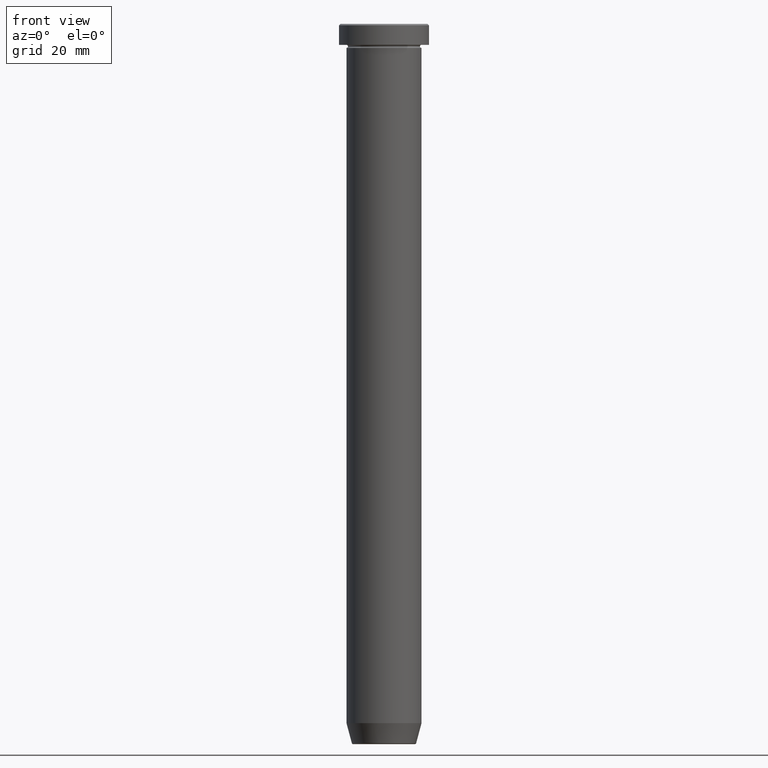
[diagram: clean part render]
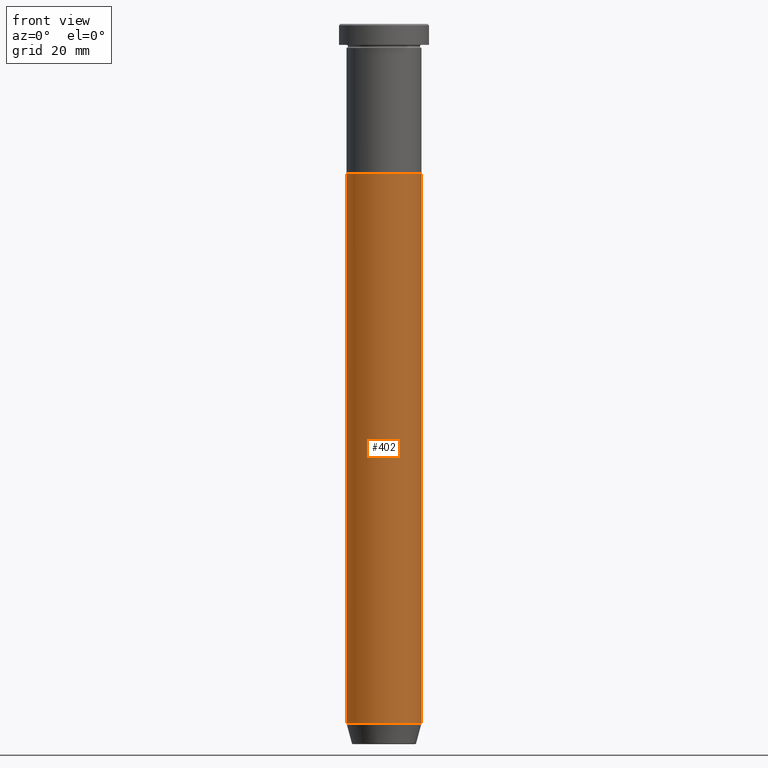
[diagram: same view with one face highlighted and labeled with its STEP entity id]
A machine part, front view. The second image highlights one B-rep face of the part: STEP entity #402.
In plain terms, the highlighted cylindrical surface (partial cylindrical patch) has radius 12.5 mm, axis along (-0, -0, 1).
Its self-contained STEP definition (entity closure, byte-faithful):
#40 = CARTESIAN_POINT ( 'NONE',  ( 12.50000000000000000, 0.000000000000000000, -50.00000000000000000 ) ) ;
#44 = CARTESIAN_POINT ( 'NONE',  ( 12.50000000000000000, 0.000000000000000000, -232.9999999999999716 ) ) ;
#93 = ORIENTED_EDGE ( 'NONE', *, *, #135, .F. ) ;
#105 = DIRECTION ( 'NONE',  ( -0.000000000000000000, -0.000000000000000000, 1.000000000000000000 ) ) ;
#108 = AXIS2_PLACEMENT_3D ( 'NONE', #541, #482, #305 ) ;
#135 = EDGE_CURVE ( 'NONE', #192, #189, #337, .T. ) ;
#164 = FACE_OUTER_BOUND ( 'NONE', #487, .T. ) ;
#167 = DIRECTION ( 'NONE',  ( -0.000000000000000000, -0.000000000000000000, 1.000000000000000000 ) ) ;
#181 = VERTEX_POINT ( 'NONE', #40 ) ;
#189 = VERTEX_POINT ( 'NONE', #399 ) ;
#192 = VERTEX_POINT ( 'NONE', #349 ) ;
#202 = DIRECTION ( 'NONE',  ( -0.000000000000000000, -0.000000000000000000, 1.000000000000000000 ) ) ;
#231 = ORIENTED_EDGE ( 'NONE', *, *, #380, .T. ) ;
#235 = AXIS2_PLACEMENT_3D ( 'NONE', #509, #105, #243 ) ;
#243 = DIRECTION ( 'NONE',  ( 1.000000000000000000, 0.000000000000000000, 0.000000000000000000 ) ) ;
#244 = VECTOR ( 'NONE', #502, 1000.000000000000000 ) ;
#272 = ORIENTED_EDGE ( 'NONE', *, *, #316, .T. ) ;
#305 = DIRECTION ( 'NONE',  ( 1.000000000000000000, 0.000000000000000000, 0.000000000000000000 ) ) ;
#316 = EDGE_CURVE ( 'NONE', #360, #181, #326, .T. ) ;
#320 = CARTESIAN_POINT ( 'NONE',  ( 12.50000000000000000, 0.000000000000000000, 0.000000000000000000 ) ) ;
#324 = EDGE_CURVE ( 'NONE', #189, #181, #575, .T. ) ;
#326 = LINE ( 'NONE', #320, #244 ) ;
#336 = DIRECTION ( 'NONE',  ( 1.000000000000000000, 0.000000000000000000, 0.000000000000000000 ) ) ;
#337 = LINE ( 'NONE', #574, #463 ) ;
#349 = CARTESIAN_POINT ( 'NONE',  ( -12.50000000000000000, 1.530808498934191521E-15, -232.9999999999999716 ) ) ;
#350 = AXIS2_PLACEMENT_3D ( 'NONE', #526, #202, #336 ) ;
#359 = CIRCLE ( 'NONE', #350, 12.50000000000000000 ) ;
#360 = VERTEX_POINT ( 'NONE', #44 ) ;
#380 = EDGE_CURVE ( 'NONE', #192, #360, #359, .T. ) ;
#399 = CARTESIAN_POINT ( 'NONE',  ( -12.50000000000000000, 1.530808498934191521E-15, -50.00000000000000000 ) ) ;
#402 = ADVANCED_FACE ( 'NONE', ( #164 ), #583, .T. ) ;
#463 = VECTOR ( 'NONE', #167, 1000.000000000000000 ) ;
#482 = DIRECTION ( 'NONE',  ( -0.000000000000000000, -0.000000000000000000, 1.000000000000000000 ) ) ;
#487 = EDGE_LOOP ( 'NONE', ( #93, #231, #272, #550 ) ) ;
#502 = DIRECTION ( 'NONE',  ( -0.000000000000000000, -0.000000000000000000, 1.000000000000000000 ) ) ;
#509 = CARTESIAN_POINT ( 'NONE',  ( 0.000000000000000000, 0.000000000000000000, -50.00000000000000000 ) ) ;
#526 = CARTESIAN_POINT ( 'NONE',  ( 0.000000000000000000, 0.000000000000000000, -232.9999999999999716 ) ) ;
#541 = CARTESIAN_POINT ( 'NONE',  ( 0.000000000000000000, 0.000000000000000000, 0.000000000000000000 ) ) ;
#550 = ORIENTED_EDGE ( 'NONE', *, *, #324, .F. ) ;
#574 = CARTESIAN_POINT ( 'NONE',  ( -12.50000000000000000, 1.530808498934191521E-15, 0.000000000000000000 ) ) ;
#575 = CIRCLE ( 'NONE', #235, 12.50000000000000000 ) ;
#583 = CYLINDRICAL_SURFACE ( 'NONE', #108, 12.50000000000000000 ) ;